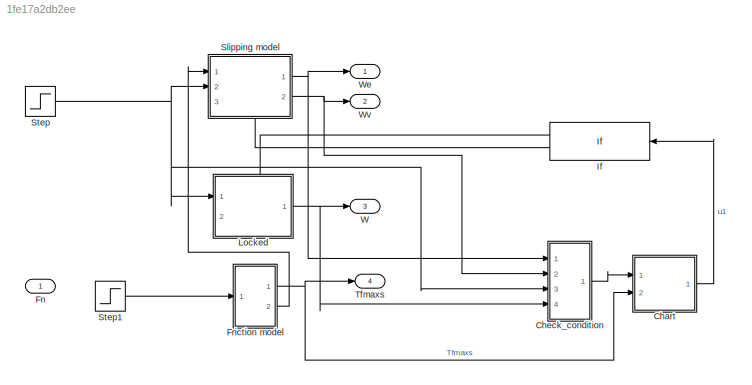
MODEL slx_1fe17a2db2ee
KIND model
CONFIG AbsTol = auto
CONFIG EnableMultiTasking = off
CONFIG FixedStep = auto
CONFIG MaxStep = auto
CONFIG MinStep = auto
CONFIG RelTol = 1e-3
CONFIG SampleTimeConstraint = Unconstrained
CONFIG SolverName = VariableStepAuto
CONFIG StartTime = 0.0
CONFIG StopTime = 10.0
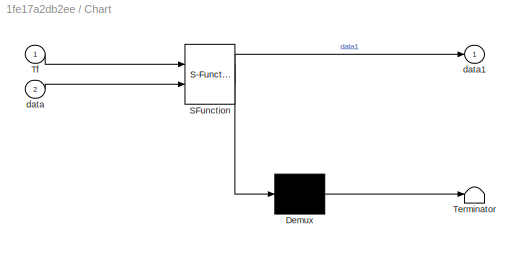
BLOCK [SubSystem] Chart
  ErrorFcn = Stateflow.Translate.translate
  PermitHierarchicalResolution = ExplicitOnly
  Ports = [2, 1]
  RequestExecContextInheritance = off
  SFBlockType = Chart
  TreatAsAtomicUnit = on
BLOCK [Demux] Chart/ Demux 
  Outputs = 1
  Ports = [1, 1]
BLOCK [S-Function] Chart/ SFunction 
  EnableBusSupport = off
  FunctionName = sf_sfun
  PortCounts = [2 2]
  Ports = [2, 2]
  SFcnIsStateOwnerBlock = off
  SFunctionDeploymentMode = off
  Tag = Stateflow S-Function 3
BLOCK [Terminator] Chart/ Terminator 
BLOCK [Inport] Chart/Tf
BLOCK [Inport] Chart/data
  Port = 2
BLOCK [Outport] Chart/data1
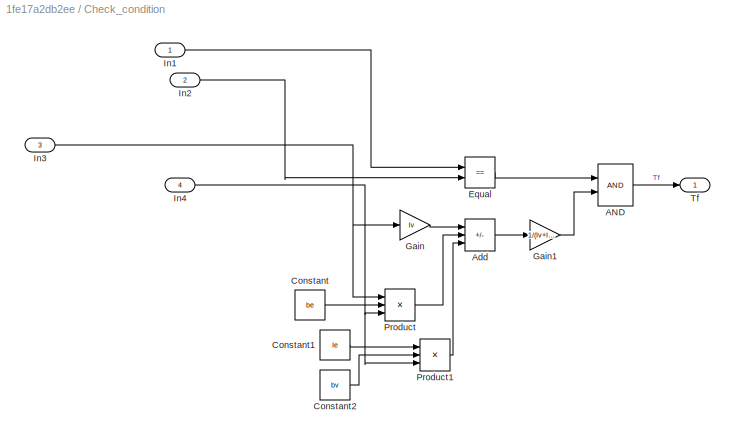
BLOCK [SubSystem] Check_condition
  Ports = [4, 1]
  RequestExecContextInheritance = off
BLOCK [Logic] Check_condition/AND
  AllPortsSameDT = off
  IconShape = distinctive
  OutDataTypeStr = boolean
  Ports = [2, 1]
BLOCK [Sum] Check_condition/Add
  IconShape = rectangular
  Inputs = +-+
  Ports = [3, 1]
BLOCK [Constant] Check_condition/Constant
  Value = be
BLOCK [Constant] Check_condition/Constant1
  Value = Ie
BLOCK [Constant] Check_condition/Constant2
  Value = bv
BLOCK [RelationalOperator] Check_condition/Equal
  InputSameDT = off
  Operator = ==
  OutDataTypeStr = boolean
  Ports = [2, 1]
  RndMeth = Simplest
BLOCK [Gain] Check_condition/Gain
  Gain = Iv
BLOCK [Gain] Check_condition/Gain1
  Gain = 1/(Iv+Ie)
BLOCK [Inport] Check_condition/In1
BLOCK [Inport] Check_condition/In2
  Port = 2
BLOCK [Inport] Check_condition/In3
  Port = 3
BLOCK [Inport] Check_condition/In4
  Port = 4
BLOCK [Product] Check_condition/Product
  Inputs = 3
  Ports = [3, 1]
BLOCK [Product] Check_condition/Product1
  Inputs = 3
  Ports = [3, 1]
BLOCK [Outport] Check_condition/Tf
BLOCK [Inport] Fn
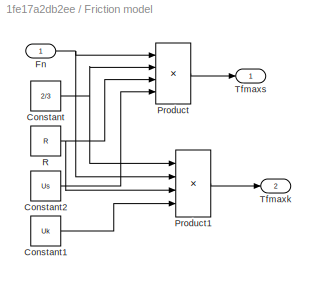
BLOCK [SubSystem] Friction model
  Ports = [1, 2]
  RequestExecContextInheritance = off
BLOCK [Constant] Friction model/Constant
  Value = 2/3
BLOCK [Constant] Friction model/Constant1
  Value = Uk
BLOCK [Constant] Friction model/Constant2
  Value = Us
BLOCK [Inport] Friction model/Fn
BLOCK [Product] Friction model/Product
  Inputs = 4
  Ports = [4, 1]
BLOCK [Product] Friction model/Product1
  Inputs = 4
  Ports = [4, 1]
BLOCK [Constant] Friction model/R
  NameLocation = right
  Value = R
BLOCK [Outport] Friction model/Tfmaxk
  Port = 2
BLOCK [Outport] Friction model/Tfmaxs
BLOCK [If] If
  IfExpression = u1 ~= 0
  NameLocation = top
  Ports = [1, 2]
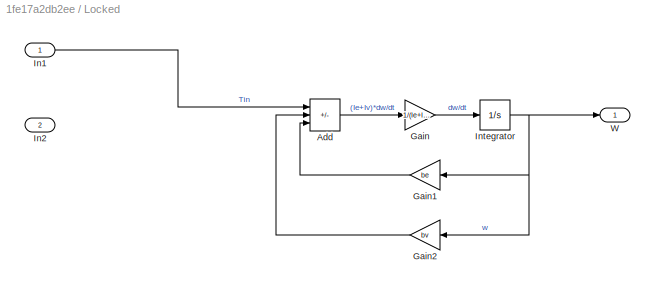
BLOCK [SubSystem] Locked
  PortSchema = {"entries":[{"content":{"sides":[{"content":{"connectorIds":["In1"]},"type":"ConnectorPlacement.EquallySpacedRectSide","uuid":"d680e90a-3d05-4b07-99af-ba9d3634b971"},{"content":{"connectorIds":["Out1"],"side":"RIGHT"},"type":"ConnectorPlacement.EquallySpacedRectSide","uuid":"2f7bce8f-7a15-4a85-b869-386858cb7efc"},{"content":{"connectorIds":["In2"],"side":"TOP"},"type":"ConnectorPlacement.EquallySp...<+389ch>
  Ports = [2, 1]
  RequestExecContextInheritance = off
BLOCK [Sum] Locked/Add
  IconShape = rectangular
  Inputs = +--
  Ports = [3, 1]
BLOCK [Gain] Locked/Gain
  Gain = 1/(Ie+Iv)
BLOCK [Gain] Locked/Gain1
  Gain = be
  NameLocation = top
BLOCK [Gain] Locked/Gain2
  Gain = bv
  NameLocation = top
BLOCK [Inport] Locked/In1
BLOCK [Inport] Locked/In2
  Port = 2
BLOCK [Integrator] Locked/Integrator
  Ports = [1, 1]
BLOCK [Outport] Locked/W
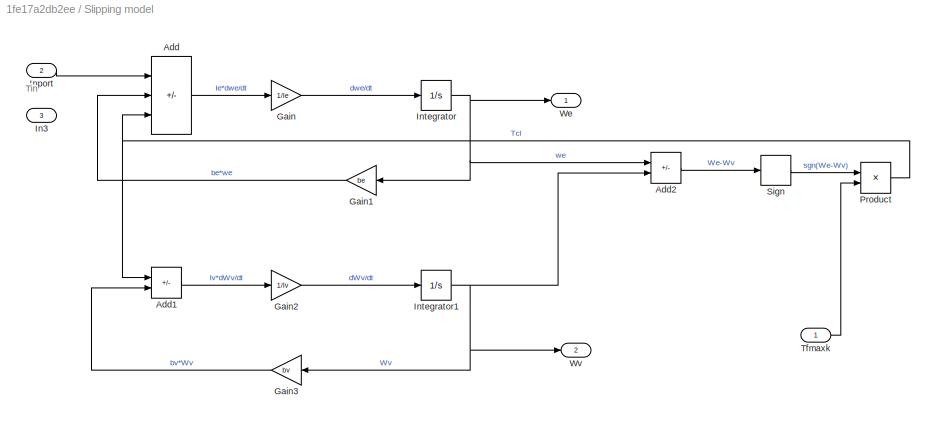
BLOCK [SubSystem] Slipping model
  PortSchema = {"entries":[{"content":{"sides":[{"content":{"connectorIds":["In1","In2"]},"type":"ConnectorPlacement.EquallySpacedRectSide","uuid":"8019448e-cc9c-4152-aad9-a60801cc60cd"},{"content":{"connectorIds":["Out1","Out2"],"side":"RIGHT"},"type":"ConnectorPlacement.EquallySpacedRectSide","uuid":"6375becc-a18f-44c7-b5b2-8427141f2704"},{"content":{"connectorIds":[],"side":"TOP"},"type":"ConnectorPlacement.E...<+546ch>
  Ports = [3, 2]
  RequestExecContextInheritance = off
BLOCK [Sum] Slipping model/Add
  IconShape = rectangular
  Inputs = +--
  Ports = [3, 1]
BLOCK [Sum] Slipping model/Add1
  IconShape = rectangular
  Inputs = +-
  Ports = [2, 1]
BLOCK [Sum] Slipping model/Add2
  IconShape = rectangular
  Inputs = +-
  Ports = [2, 1]
BLOCK [Gain] Slipping model/Gain
  Gain = 1/Ie
BLOCK [Gain] Slipping model/Gain1
  Gain = be
  NameLocation = top
BLOCK [Gain] Slipping model/Gain2
  Gain = 1/Iv
BLOCK [Gain] Slipping model/Gain3
  Gain = bv
  NameLocation = top
BLOCK [Inport] Slipping model/In3
  Port = 3
BLOCK [Inport] Slipping model/Inport
  Port = 2
BLOCK [Integrator] Slipping model/Integrator
  Ports = [1, 1]
BLOCK [Integrator] Slipping model/Integrator1
  Ports = [1, 1]
BLOCK [Product] Slipping model/Product
  Ports = [2, 1]
BLOCK [Signum] Slipping model/Sign
BLOCK [Inport] Slipping model/Tfmaxk
BLOCK [Outport] Slipping model/We
BLOCK [Outport] Slipping model/Wv
  Port = 2
BLOCK [Step] Step
  SampleTime = 0
BLOCK [Step] Step1
  SampleTime = 0
  Time = 5
BLOCK [Outport] Tfmaxs
  Port = 4
BLOCK [Outport] W
  Port = 3
BLOCK [Outport] We
BLOCK [Outport] Wv
  Port = 2
ANNOTATION Slipping model: Tin
LINE Chart:1 -> If:1
LINE Check_condition/AND:1 -> Check_condition/Tf:1
LINE Check_condition/Add:1 -> Check_condition/Gain1:1
LINE Check_condition/Constant1:1 -> Check_condition/Product1:1
LINE Check_condition/Constant2:1 -> Check_condition/Product1:2
LINE Check_condition/Constant:1 -> Check_condition/Product:2
LINE Check_condition/Equal:1 -> Check_condition/AND:1
LINE Check_condition/Gain1:1 -> Check_condition/AND:2
LINE Check_condition/Gain:1 -> Check_condition/Add:1
LINE Check_condition/In1:1 -> Check_condition/Equal:1
LINE Check_condition/In2:1 -> Check_condition/Equal:2
NET Check_condition/In3:1 -> Check_condition/Gain:1, Check_condition/Product:1
NET Check_condition/In4:1 -> Check_condition/Product1:3, Check_condition/Product:3
LINE Check_condition/Product1:1 -> Check_condition/Add:3
LINE Check_condition/Product:1 -> Check_condition/Add:2
LINE Check_condition:1 -> Chart:1
LINE Friction model/Constant1:1 -> Friction model/Product1:4
LINE Friction model/Constant2:1 -> Friction model/Product:4
NET Friction model/Constant:1 -> Friction model/Product1:1, Friction model/Product:2
NET Friction model/Fn:1 -> Friction model/Product1:2, Friction model/Product:1
LINE Friction model/Product1:1 -> Friction model/Tfmaxk:1
LINE Friction model/Product:1 -> Friction model/Tfmaxs:1
NET Friction model/R:1 -> Friction model/Product1:3, Friction model/Product:3
NET Friction model:1 -> Chart:2, Tfmaxs:1
LINE Friction model:2 -> Slipping model:1
LINE If:1 -> Locked:2
LINE If:2 -> Slipping model:3
LINE Locked/Add:1 -> Locked/Gain:1
LINE Locked/Gain1:1 -> Locked/Add:3
LINE Locked/Gain2:1 -> Locked/Add:2
LINE Locked/Gain:1 -> Locked/Integrator:1
LINE Locked/In1:1 -> Locked/Add:1
NET Locked/Integrator:1 -> Locked/Gain1:1, Locked/Gain2:1, Locked/W:1
NET Locked:1 -> Check_condition:4, W:1
LINE Slipping model/Add1:1 -> Slipping model/Gain2:1
LINE Slipping model/Add2:1 -> Slipping model/Sign:1
LINE Slipping model/Add:1 -> Slipping model/Gain:1
LINE Slipping model/Gain1:1 -> Slipping model/Add:2
LINE Slipping model/Gain2:1 -> Slipping model/Integrator1:1
LINE Slipping model/Gain3:1 -> Slipping model/Add1:2
LINE Slipping model/Gain:1 -> Slipping model/Integrator:1
LINE Slipping model/Inport:1 -> Slipping model/Add:1
NET Slipping model/Integrator1:1 -> Slipping model/Add2:2, Slipping model/Gain3:1, Slipping model/Wv:1
NET Slipping model/Integrator:1 -> Slipping model/Add2:1, Slipping model/Gain1:1, Slipping model/We:1
NET Slipping model/Product:1 -> Slipping model/Add1:1, Slipping model/Add:3
LINE Slipping model/Sign:1 -> Slipping model/Product:1
LINE Slipping model/Tfmaxk:1 -> Slipping model/Product:2
NET Slipping model:1 -> Check_condition:1, We:1
NET Slipping model:2 -> Check_condition:2, Wv:1
LINE Step1:1 -> Friction model:1
NET Step:1 -> Check_condition:3, Locked:1, Slipping model:2
note: NET lines group one-source signal fan-out (src -> all destinations, sorted); 1:1 wires keep LINE
CHART Chart states=2 transitions=3
  STATE_LABEL 'Unlock\ndata1=0'
  STATE_LABEL 'locked\ndata1=1'
CHART  states=0 transitions=0
